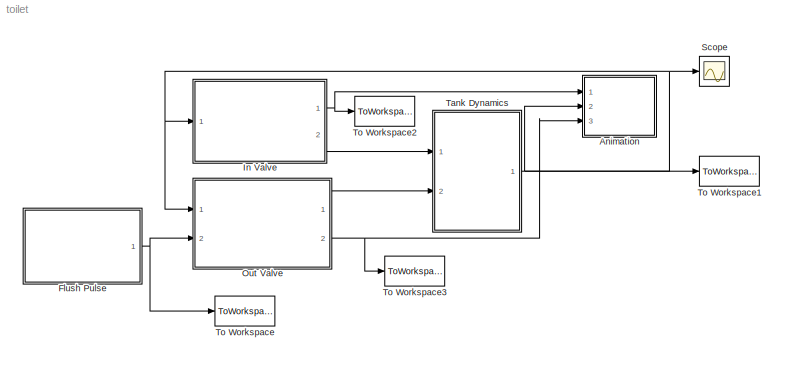
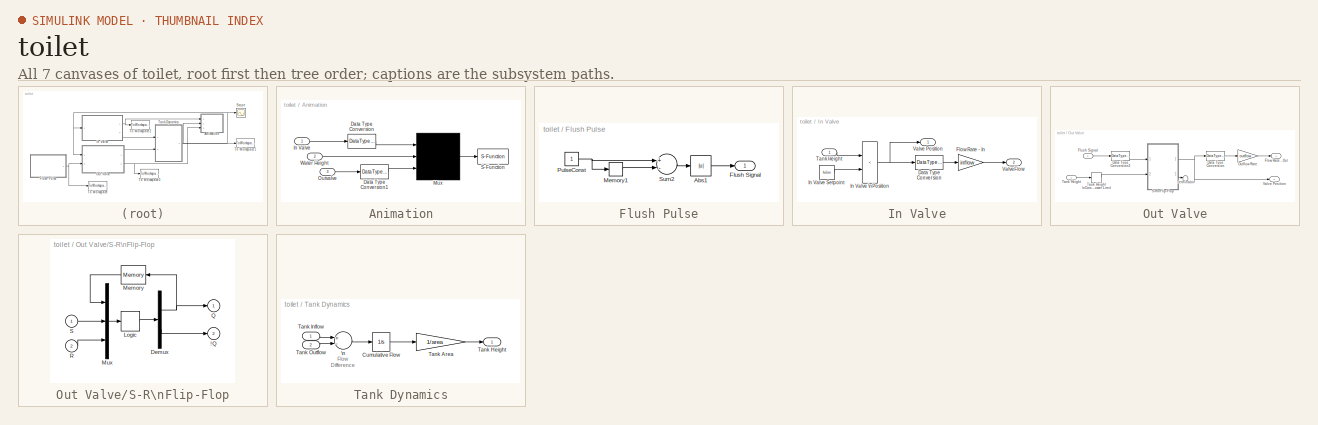
[diagram: thumbnail index - all 7 canvases of the model, root first then tree order]
MODEL toilet
KIND model
CONFIG PreLoadFcn = toiletgui
CONFIG StartFcn = toiletgui start
CONFIG StopFcn = toiletgui stop
BLOCK [SubSystem] Animation
  MaskDisplay = disp('Animation\\nControl')\n
  MaskIconFrame = on
  MaskIconOpaque = on
  MaskIconRotate = none
  MaskIconUnits = autoscale
  MinAlgLoopOccurrences = off
  Ports = [3]
  PropExecContextAcrossSSBoundary = on
  RTWSystemCode = Auto
  TreatAsAtomicUnit = off
BLOCK [DataTypeConversion] Animation/Data Type Conversion
  OutDataTypeMode = double
BLOCK [DataTypeConversion] Animation/Data Type Conversion1
  OutDataTypeMode = double
BLOCK [Inport] Animation/In Valve
  IconDisplay = Port number
  LatchInput = off
  Port = 1
BLOCK [Mux] Animation/Mux
  Inputs = 3
  Ports = [3, 1]
BLOCK [Inport] Animation/Outvalve
  IconDisplay = Port number
  LatchInput = off
  Port = 3
BLOCK [S-Function] Animation/S-Function
  FunctionName = toiletsfun
  Parameters = inflow,outflow,lolim,hilim,area
  Ports = [1]
BLOCK [Inport] Animation/Water Height
  IconDisplay = Port number
  LatchInput = off
  Port = 2
BLOCK [SubSystem] Flush Pulse
  MaskDisplay = disp('Double Click\\nTo\\nFlush Me!')
  MaskIconFrame = on
  MaskIconOpaque = on
  MaskIconRotate = none
  MaskIconUnits = autoscale
  MinAlgLoopOccurrences = off
  OpenFcn = toiletgui flush
  Ports = [0, 1]
  PropExecContextAcrossSSBoundary = on
  RTWSystemCode = Auto
  TreatAsAtomicUnit = off
BLOCK [Abs] Flush Pulse/Abs1
BLOCK [Outport] Flush Pulse/Flush Signal
  IconDisplay = Port number
  InitialOutput = 0
BLOCK [Memory] Flush Pulse/Memory1
BLOCK [Constant] Flush Pulse/PulseConst
BLOCK [Sum] Flush Pulse/Sum2
  Inputs = +-
  Ports = [2, 1]
BLOCK [SubSystem] In Valve
  MaskCallbackString = |
  MaskEnableString = on,on
  MaskIconFrame = on
  MaskIconOpaque = on
  MaskIconRotate = none
  MaskIconUnits = autoscale
  MaskPromptString = Shut Off Height|Flow Rate
  MaskStyleString = edit,edit
  MaskTabNameString = ,
  MaskToolTipString = on,on
  MaskTunableValueString = on,on
  MaskValueString = hilim|inflow
  MaskVarAliasString = ,
  MaskVariables = hilim=@1;inflow=@2;
  MaskVisibilityString = on,on
  MinAlgLoopOccurrences = off
  Ports = [1, 2]
  PropExecContextAcrossSSBoundary = on
  RTWSystemCode = Auto
  TreatAsAtomicUnit = off
BLOCK [DataTypeConversion] In Valve/Data Type Conversion
  OutDataTypeMode = double
BLOCK [Gain] In Valve/Flow Rate - In
  Gain = inflow
  OutDataTypeMode = Inherit via back propagation
BLOCK [Constant] In Valve/In Valve Setpoint
  Value = hilim
BLOCK [RelationalOperator] In Valve/In Valve \nPosition
  Operator = <
BLOCK [Inport] In Valve/Tank Height
  IconDisplay = Port number
  LatchInput = off
  Port = 1
BLOCK [Outport] In Valve/Valve Position
  IconDisplay = Port number
  InitialOutput = 0
BLOCK [Outport] In Valve/ValveFlow
  IconDisplay = Port number
  InitialOutput = 0
  Port = 2
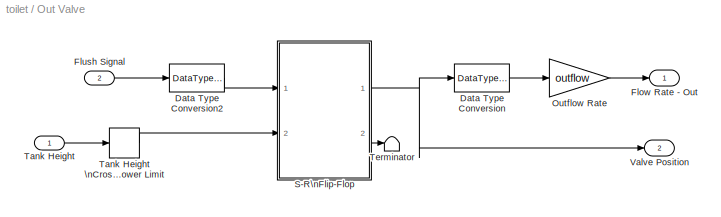
BLOCK [SubSystem] Out Valve
  MinAlgLoopOccurrences = off
  Ports = [2, 2]
  PropExecContextAcrossSSBoundary = on
  RTWSystemCode = Auto
  TreatAsAtomicUnit = off
BLOCK [DataTypeConversion] Out Valve/Data Type Conversion
  OutDataTypeMode = double
BLOCK [DataTypeConversion] Out Valve/Data Type Conversion2
  OutDataTypeMode = boolean
BLOCK [Outport] Out Valve/Flow Rate - Out
  IconDisplay = Port number
  InitialOutput = 0
BLOCK [Inport] Out Valve/Flush Signal
  IconDisplay = Port number
  LatchInput = off
  Port = 2
BLOCK [Gain] Out Valve/Outflow Rate
  Gain = outflow
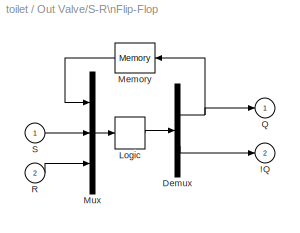
BLOCK [SubSystem] Out Valve/S-R\nFlip-Flop
  MaskIconFrame = on
  MaskIconOpaque = on
  MaskIconRotate = none
  MaskIconUnits = autoscale
  MaskType = S-R Flip-Flop
  MinAlgLoopOccurrences = off
  Ports = [2, 2]
  PropExecContextAcrossSSBoundary = on
  RTWSystemCode = Auto
  TreatAsAtomicUnit = off
BLOCK [Outport] Out Valve/S-R\nFlip-Flop/!Q
  IconDisplay = Port number
  InitialOutput = 1
  Port = 2
BLOCK [Demux] Out Valve/S-R\nFlip-Flop/Demux
  Outputs = 2
  Ports = [1, 2]
BLOCK [CombinatorialLogic] Out Valve/S-R\nFlip-Flop/Logic
  TruthTable = [0 1;0 1;1 0;0 1;1 0;0 1;1 0;1 0]
BLOCK [Memory] Out Valve/S-R\nFlip-Flop/Memory
  InheritSampleTime = on
BLOCK [Mux] Out Valve/S-R\nFlip-Flop/Mux
  Inputs = 3
  Ports = [3, 1]
BLOCK [Outport] Out Valve/S-R\nFlip-Flop/Q
  IconDisplay = Port number
  InitialOutput = 0
BLOCK [Inport] Out Valve/S-R\nFlip-Flop/R
  IconDisplay = Port number
  LatchInput = off
  Port = 2
BLOCK [Inport] Out Valve/S-R\nFlip-Flop/S
  IconDisplay = Port number
  LatchInput = off
  Port = 1
BLOCK [Inport] Out Valve/Tank Height
  IconDisplay = Port number
  LatchInput = off
  Port = 1
BLOCK [HitCross] Out Valve/Tank Height \nCrosses\nLower Limit
  HitCrossingDirection = falling
  HitCrossingOffset = lolim
  Ports = [1, 1]
BLOCK [Terminator] Out Valve/Terminator
BLOCK [Outport] Out Valve/Valve Position
  IconDisplay = Port number
  InitialOutput = 0
  Port = 2
BLOCK [Scope] Scope
  DataFormat = Array
  NumInputPorts = 1
  Ports = [1]
  TickLabels = on
  TimeRange = 20
  YMax = 12.5
  YMin = 0
BLOCK [SubSystem] Tank Dynamics
  MinAlgLoopOccurrences = off
  Ports = [2, 1]
  PropExecContextAcrossSSBoundary = on
  RTWSystemCode = Auto
  TreatAsAtomicUnit = off
BLOCK [Integrator] Tank Dynamics/Cumulative Flow
  InitialCondition = (hilim+lolim)/2*area
  Ports = [1, 1]
BLOCK [Gain] Tank Dynamics/Tank Area
  Gain = 1/area
BLOCK [Outport] Tank Dynamics/Tank Height
  IconDisplay = Port number
  InitialOutput = 0
BLOCK [Inport] Tank Dynamics/Tank Inflow
  IconDisplay = Port number
  LatchInput = off
  Port = 1
BLOCK [Inport] Tank Dynamics/Tank Outflow
  IconDisplay = Port number
  LatchInput = off
  Port = 2
BLOCK [Sum] Tank Dynamics/\n
  Inputs = +-
  Ports = [2, 1]
BLOCK [ToWorkspace] To Workspace
  MaxDataPoints = inf
  SampleTime = -1
  SaveFormat = Array
  VariableName = flushpulse
BLOCK [ToWorkspace] To Workspace1
  MaxDataPoints = inf
  SampleTime = -1
  SaveFormat = Array
  VariableName = tankheight
BLOCK [ToWorkspace] To Workspace2
  MaxDataPoints = inf
  SampleTime = -1
  SaveFormat = Array
  VariableName = invalve
BLOCK [ToWorkspace] To Workspace3
  MaxDataPoints = inf
  SampleTime = -1
  SaveFormat = Array
  VariableName = Outvalve
ANNOTATION Tank Dynamics: Flow\nDifference
LINE Animation/Data Type Conversion1:1 -> Animation/Mux:3
LINE Animation/Data Type Conversion:1 -> Animation/Mux:1
LINE Animation/In Valve:1 -> Animation/Data Type Conversion:1
LINE Animation/Mux:1 -> Animation/S-Function:1
LINE Animation/Outvalve:1 -> Animation/Data Type Conversion1:1
LINE Animation/Water Height:1 -> Animation/Mux:2
LINE Flush Pulse/Abs1:1 -> Flush Pulse/Flush Signal:1
LINE Flush Pulse/Memory1:1 -> Flush Pulse/Sum2:2
NET Flush Pulse/PulseConst:1 -> Flush Pulse/Memory1:1, Flush Pulse/Sum2:1
LINE Flush Pulse/Sum2:1 -> Flush Pulse/Abs1:1
NET Flush Pulse:1 -> Out Valve:2, To Workspace:1
LINE In Valve/Data Type Conversion:1 -> In Valve/Flow Rate - In:1
LINE In Valve/Flow Rate - In:1 -> In Valve/ValveFlow:1
LINE In Valve/In Valve Setpoint:1 -> In Valve/In Valve \nPosition:2
NET In Valve/In Valve \nPosition:1 -> In Valve/Data Type Conversion:1, In Valve/Valve Position:1
LINE In Valve/Tank Height:1 -> In Valve/In Valve \nPosition:1
NET In Valve:1 -> Animation:1, To Workspace2:1
LINE In Valve:2 -> Tank Dynamics:1
LINE Out Valve/Data Type Conversion2:1 -> Out Valve/S-R\nFlip-Flop:1
LINE Out Valve/Data Type Conversion:1 -> Out Valve/Outflow Rate:1
LINE Out Valve/Flush Signal:1 -> Out Valve/Data Type Conversion2:1
LINE Out Valve/Outflow Rate:1 -> Out Valve/Flow Rate - Out:1
NET Out Valve/S-R\nFlip-Flop/Demux:1 -> Out Valve/S-R\nFlip-Flop/Memory:1, Out Valve/S-R\nFlip-Flop/Q:1
LINE Out Valve/S-R\nFlip-Flop/Demux:2 -> Out Valve/S-R\nFlip-Flop/!Q:1
LINE Out Valve/S-R\nFlip-Flop/Logic:1 -> Out Valve/S-R\nFlip-Flop/Demux:1
LINE Out Valve/S-R\nFlip-Flop/Memory:1 -> Out Valve/S-R\nFlip-Flop/Mux:1
LINE Out Valve/S-R\nFlip-Flop/Mux:1 -> Out Valve/S-R\nFlip-Flop/Logic:1
LINE Out Valve/S-R\nFlip-Flop/R:1 -> Out Valve/S-R\nFlip-Flop/Mux:3
LINE Out Valve/S-R\nFlip-Flop/S:1 -> Out Valve/S-R\nFlip-Flop/Mux:2
NET Out Valve/S-R\nFlip-Flop:1 -> Out Valve/Data Type Conversion:1, Out Valve/Valve Position:1
LINE Out Valve/S-R\nFlip-Flop:2 -> Out Valve/Terminator:1
LINE Out Valve/Tank Height \nCrosses\nLower Limit:1 -> Out Valve/S-R\nFlip-Flop:2
LINE Out Valve/Tank Height:1 -> Out Valve/Tank Height \nCrosses\nLower Limit:1
LINE Out Valve:1 -> Tank Dynamics:2
NET Out Valve:2 -> Animation:3, To Workspace3:1
LINE Tank Dynamics/Cumulative Flow:1 -> Tank Dynamics/Tank Area:1
LINE Tank Dynamics/Tank Area:1 -> Tank Dynamics/Tank Height:1
LINE Tank Dynamics/Tank Inflow:1 -> Tank Dynamics/\n:1
LINE Tank Dynamics/Tank Outflow:1 -> Tank Dynamics/\n:2
LINE Tank Dynamics/\n:1 -> Tank Dynamics/Cumulative Flow:1
NET Tank Dynamics:1 -> Animation:2, In Valve:1, Out Valve:1, Scope:1, To Workspace1:1
note: NET lines group one-source signal fan-out (src -> all destinations, sorted); 1:1 wires keep LINE
